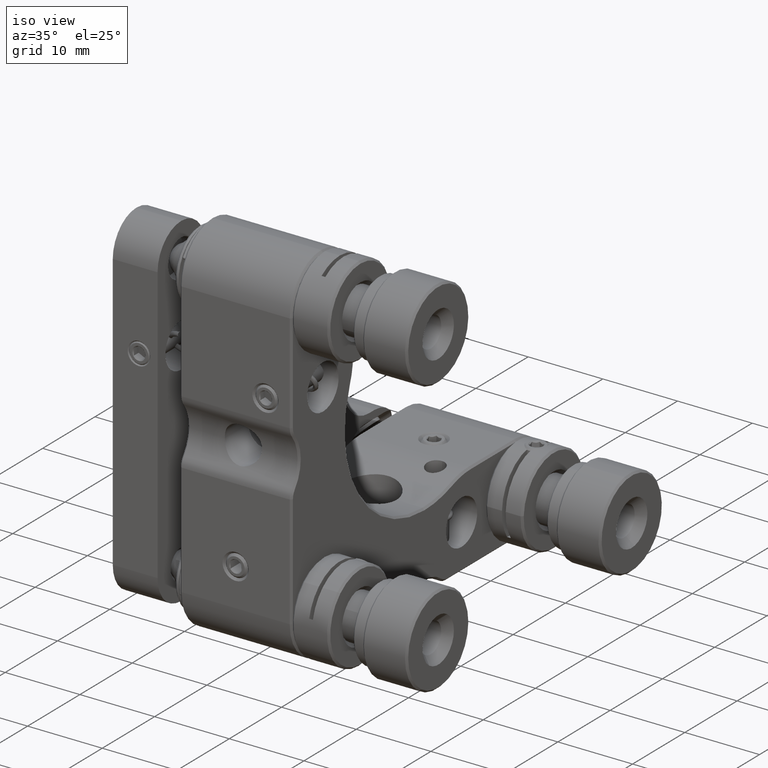
[diagram: clean part render]
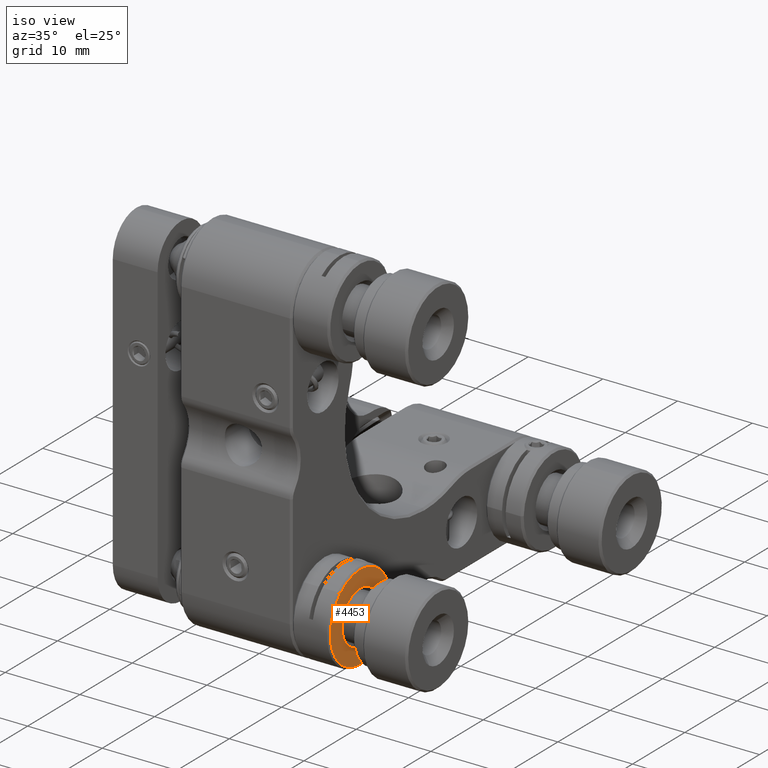
[diagram: same view with one face highlighted and labeled with its STEP entity id]
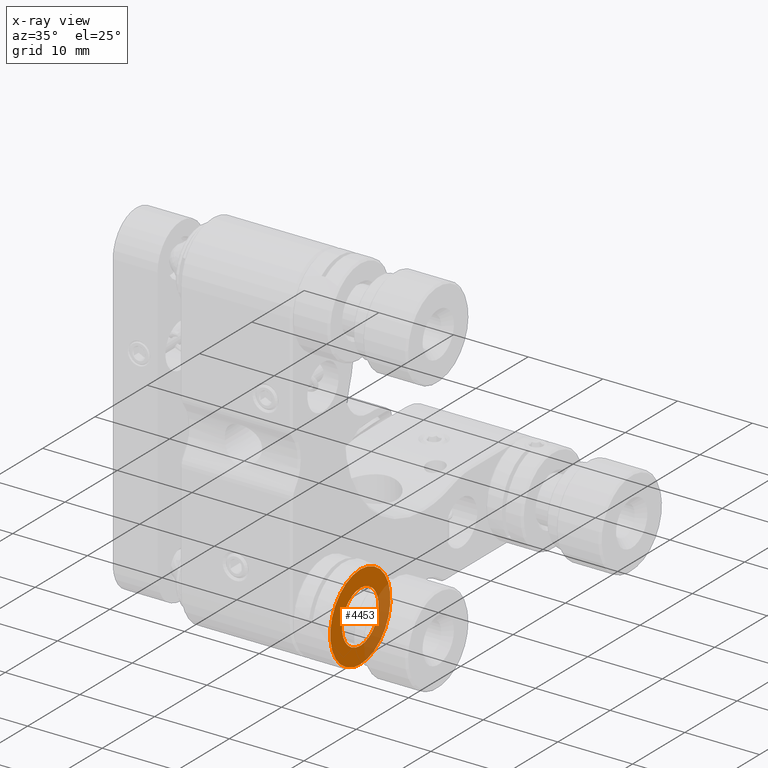
[diagram: x-ray of the same camera — body ghosted, the highlighted face saturated]
A machine part, iso view. The second image highlights one B-rep face of the part: STEP entity #4453.
The next image is the same camera in x-ray: the body ghosted, the highlighted face saturated — about 28% of this face is hidden behind the body in this view.
In plain terms, the highlighted planar face has unit normal (1, 0, -0).
Its self-contained STEP definition (entity closure, byte-faithful):
#540 = DIRECTION ( 'NONE',  ( 0.0000000000000000000, 0.6690448564040126778, -0.7432220261263348116 ) ) ;
#845 = DIRECTION ( 'NONE',  ( -1.000000000000000000, -1.442136342357162207E-30, 1.224646799147357891E-16 ) ) ;
#1755 = EDGE_CURVE ( 'NONE', #3892, #7417, #12093, .T. ) ;
#2153 = DIRECTION ( 'NONE',  ( 1.000000000000000000, 1.405158487424927278E-30, -1.224646799147357398E-16 ) ) ;
#3011 = DIRECTION ( 'NONE',  ( 0.0000000000000000000, 0.6690448564040109014, -0.7432220261263362548 ) ) ;
#3668 = DIRECTION ( 'NONE',  ( 0.0000000000000000000, 0.6690448564040130108, -0.7432220261263343675 ) ) ;
#3750 = ORIENTED_EDGE ( 'NONE', *, *, #1755, .T. ) ;
#3892 = VERTEX_POINT ( 'NONE', #13460 ) ;
#4453 = ADVANCED_FACE ( 'NONE', ( #35763, #9089 ), #38370, .T. ) ;
#4501 = CARTESIAN_POINT ( 'NONE',  ( 12.50000000000000000, -20.84165699741403444, -15.89872290855782744 ) ) ;
#5751 = EDGE_CURVE ( 'NONE', #7417, #3892, #41164, .T. ) ;
#6039 = DIRECTION ( 'NONE',  ( -9.101844753514388286E-17, 0.6690448564040125667, -0.7432220261263347005 ) ) ;
#6542 = AXIS2_PLACEMENT_3D ( 'NONE', #26789, #20066, #540 ) ;
#6921 = ORIENTED_EDGE ( 'NONE', *, *, #14535, .T. ) ;
#7417 = VERTEX_POINT ( 'NONE', #12959 ) ;
#8650 = CARTESIAN_POINT ( 'NONE',  ( 12.50000000000000000, -18.49999999999999645, -18.49999999999999289 ) ) ;
#9089 = FACE_OUTER_BOUND ( 'NONE', #9400, .T. ) ;
#9400 = EDGE_LOOP ( 'NONE', ( #3750, #24365 ) ) ;
#11915 = CIRCLE ( 'NONE', #22994, 3.499999999999988898 ) ;
#12093 = CIRCLE ( 'NONE', #14868, 5.749999999999999112 ) ;
#12959 = CARTESIAN_POINT ( 'NONE',  ( 12.50000000000000000, -14.65299207567692363, -22.77352665022641531 ) ) ;
#13460 = CARTESIAN_POINT ( 'NONE',  ( 12.50000000000000000, -22.34700792432306926, -14.22647334977356692 ) ) ;
#14535 = EDGE_CURVE ( 'NONE', #29231, #34546, #32054, .T. ) ;
#14868 = AXIS2_PLACEMENT_3D ( 'NONE', #19449, #26589, #42649 ) ;
#15028 = CARTESIAN_POINT ( 'NONE',  ( 12.50000000000000000, -18.49999999999999645, -18.49999999999999289 ) ) ;
#16259 = DIRECTION ( 'NONE',  ( -1.000000000000000000, -1.442136342357162207E-30, 1.224646799147357891E-16 ) ) ;
#17407 = EDGE_CURVE ( 'NONE', #34546, #29231, #11915, .T. ) ;
#19449 = CARTESIAN_POINT ( 'NONE',  ( 12.50000000000000000, -18.49999999999999645, -18.49999999999999289 ) ) ;
#20066 = DIRECTION ( 'NONE',  ( 1.000000000000000000, 1.442136342357162207E-30, -1.224646799147357891E-16 ) ) ;
#20153 = CARTESIAN_POINT ( 'NONE',  ( 12.50000000000000000, -18.49999999999999645, -18.49999999999999289 ) ) ;
#22994 = AXIS2_PLACEMENT_3D ( 'NONE', #20153, #845, #3668 ) ;
#24365 = ORIENTED_EDGE ( 'NONE', *, *, #5751, .T. ) ;
#25725 = CARTESIAN_POINT ( 'NONE',  ( 12.50000000000000000, -16.15834300258595846, -21.10127709144215302 ) ) ;
#26589 = DIRECTION ( 'NONE',  ( 1.000000000000000000, 1.442136342357162207E-30, -1.224646799147357891E-16 ) ) ;
#26789 = CARTESIAN_POINT ( 'NONE',  ( 12.50000000000000000, -18.49999999999999645, -18.49999999999999289 ) ) ;
#28816 = EDGE_LOOP ( 'NONE', ( #35997, #6921 ) ) ;
#29231 = VERTEX_POINT ( 'NONE', #4501 ) ;
#30288 = AXIS2_PLACEMENT_3D ( 'NONE', #8650, #2153, #6039 ) ;
#32054 = CIRCLE ( 'NONE', #36194, 3.499999999999989342 ) ;
#34546 = VERTEX_POINT ( 'NONE', #25725 ) ;
#35763 = FACE_BOUND ( 'NONE', #28816, .T. ) ;
#35997 = ORIENTED_EDGE ( 'NONE', *, *, #17407, .T. ) ;
#36194 = AXIS2_PLACEMENT_3D ( 'NONE', #15028, #16259, #3011 ) ;
#38370 = PLANE ( 'NONE',  #30288 ) ;
#41164 = CIRCLE ( 'NONE', #6542, 5.749999999999999112 ) ;
#42649 = DIRECTION ( 'NONE',  ( 0.0000000000000000000, 0.6690448564040126778, -0.7432220261263348116 ) ) ;